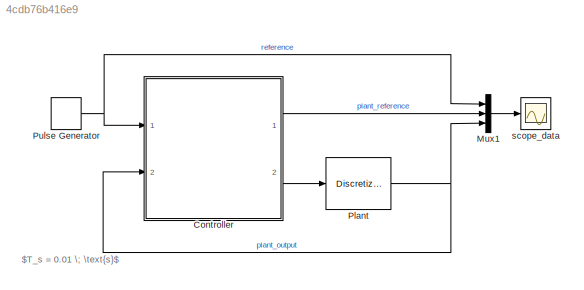
MODEL slx_4cdb76b416e9
KIND model
CONFIG AbsTol = auto
CONFIG EnableMultiTasking = on
CONFIG FixedStep = 0.01
CONFIG InitFcn = set_param(gcs,'ParameterMemberVisibility','public');
CONFIG MaxStep = auto
CONFIG MinStep = auto
CONFIG RelTol = 1e-3
CONFIG SampleTimeConstraint = Unconstrained
CONFIG SolverName = FixedStepDiscrete
CONFIG StartTime = 0.0
CONFIG StopTime = 40
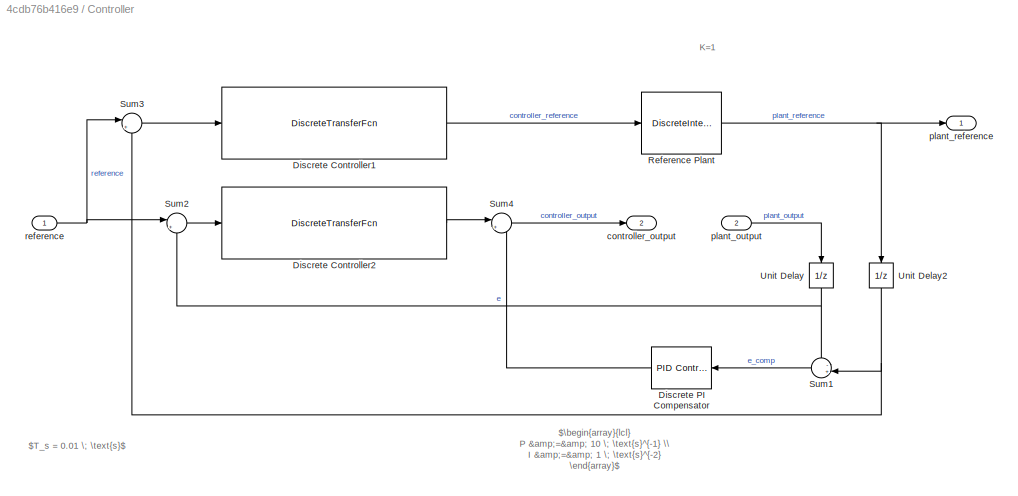
BLOCK [SubSystem] Controller
  Ports = [2, 2]
  RequestExecContextInheritance = off
  ShowPortLabels = SignalName
  TreatAsAtomicUnit = on
BLOCK [DiscreteTransferFcn] Controller/Discrete Controller1
  Denominator = [1 -1.921 0.9231]
  InputPortMap = u0
  Numerator = [0.00045 0.0009 0.00045]
  Ports = [1, 1]
  SampleTime = 0.01
BLOCK [DiscreteTransferFcn] Controller/Discrete Controller2
  Denominator = [1 -1.921 0.9231]
  InputPortMap = u0
  Numerator = [0.00045 0.0009 0.00045]
  Ports = [1, 1]
  SampleTime = 0.01
BLOCK [Reference] Controller/Discrete PI Compensator  REF=pid_lib/PID Controller
  NameLocation = top
  Ports = [1, 1]
  SourceBlock = pid_lib/PID Controller
  SourceProductBaseCode = SL
  SourceType = PID 1dof
BLOCK [DiscreteIntegrator] Controller/Reference Plant
  ICPrevOutput = DiscIntNeverNeededParam
  ICPrevScaledInput = DiscIntNeverNeededParam
  InitialConditionSetting = Auto
  IntegratorMethod = Integration: Trapezoidal
  LowerSaturationLimit = -1
  Ports = [1, 1]
  SampleTime = 0.01
  UpperSaturationLimit = 1
BLOCK [Sum] Controller/Sum1
  Inputs = -+|
  Ports = [2, 1]
BLOCK [Sum] Controller/Sum2
  Inputs = |+-
  Ports = [2, 1]
BLOCK [Sum] Controller/Sum3
  Inputs = |+-
  Ports = [2, 1]
BLOCK [Sum] Controller/Sum4
  Inputs = |++
  Ports = [2, 1]
BLOCK [UnitDelay] Controller/Unit Delay
  HasFrameUpgradeWarning = on
  NameLocation = left
  SampleTime = -1
BLOCK [UnitDelay] Controller/Unit Delay2
  HasFrameUpgradeWarning = on
  NameLocation = left
  SampleTime = -1
BLOCK [Outport] Controller/controller_output
  Port = 2
BLOCK [Inport] Controller/plant_output
  Port = 2
BLOCK [Outport] Controller/plant_reference
BLOCK [Inport] Controller/reference
BLOCK [Mux] Mux1
  DisplayOption = bar
  Inputs = 3
  Ports = [3, 1]
BLOCK [Reference] Plant  REF=discretizing/Discretized  (lib defined in mdl_5048aa1cd587)
Transfer Fcn
  Ports = [1, 1]
  SourceBlock = discretizing/Discretized\nTransfer Fcn
  SourceProductBaseCode = SL
  SourceType = DiscretizedTransferFcn
BLOCK [DiscretePulseGenerator] Pulse Generator
  Period = 20
  PhaseDelay = 1
  Ports = [0, 1]
  PulseType = Time based
  PulseWidth = 50
BLOCK [Scope] scope_data
  Floating = off
  NumInputPorts = 1
  Ports = [1]
  ScopeSpecificationString = Simulink.scopes.TimeScopeBlockCfg('CurrentConfiguration', extmgr.ConfigurationSet(extmgr.Configuration('Core','General UI',true,'FigureColor',[1 1 1]),extmgr.Configuration('Core','Source UI',true),extmgr.Configuration('Sources','WiredSimulink',true,'DataLoggingSaveFormat','Array','DataLoggingDecimation','1','DataLogging',true,'DataLoggingVariableName','scope_data'),extmgr.Configuration('Visuals','...<+2423ch>
ANNOTATION (root): $T_s = 0.01 \; \text{s}$
ANNOTATION Controller: $T_s = 0.01 \; \text{s}$
ANNOTATION Controller: $\begin{array}{lcl} P &=& 10 \; \text{s}^{-1} \\ I &=& 1 \; \text{s}^{-2} \end{array}$
ANNOTATION Controller: K=1
LINE Controller/Discrete Controller1:1 -> Controller/Reference Plant:1
LINE Controller/Discrete Controller2:1 -> Controller/Sum4:1
LINE Controller/Discrete PI Compensator:1 -> Controller/Sum4:2
NET Controller/Reference Plant:1 -> Controller/Unit Delay2:1, Controller/plant_reference:1
LINE Controller/Sum1:1 -> Controller/Discrete PI Compensator:1
LINE Controller/Sum2:1 -> Controller/Discrete Controller2:1
LINE Controller/Sum3:1 -> Controller/Discrete Controller1:1
LINE Controller/Sum4:1 -> Controller/controller_output:1
NET Controller/Unit Delay2:1 -> Controller/Sum1:2, Controller/Sum3:2
NET Controller/Unit Delay:1 -> Controller/Sum1:1, Controller/Sum2:2
LINE Controller/plant_output:1 -> Controller/Unit Delay:1
NET Controller/reference:1 -> Controller/Sum2:1, Controller/Sum3:1
LINE Controller:1 -> Mux1:2
LINE Controller:2 -> Plant:1
LINE Mux1:1 -> scope_data:1
NET Plant:1 -> Controller:2, Mux1:3
NET Pulse Generator:1 -> Controller:1, Mux1:1
note: NET lines group one-source signal fan-out (src -> all destinations, sorted); 1:1 wires keep LINE
